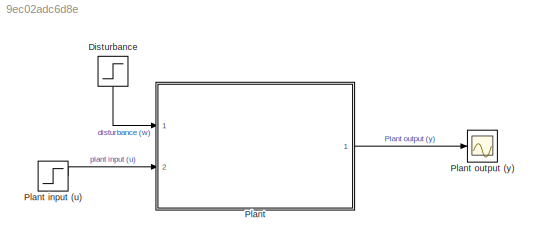
MODEL slx_9ec02adc6d8e
KIND model
CONFIG AbsTol = auto
CONFIG EnableMultiTasking = off
CONFIG FixedStep = auto
CONFIG MaxStep = auto
CONFIG MinStep = auto
CONFIG RelTol = 1e-3
CONFIG SampleTimeConstraint = Unconstrained
CONFIG Solver = VariableStepAuto
CONFIG SolverName = VariableStepAuto
CONFIG StartTime = 0.0
CONFIG StopTime = 10.0
BLOCK [Step] Disturbance
  After = 0
  NameLocation = left
  SampleTime = 0
  Time = 5
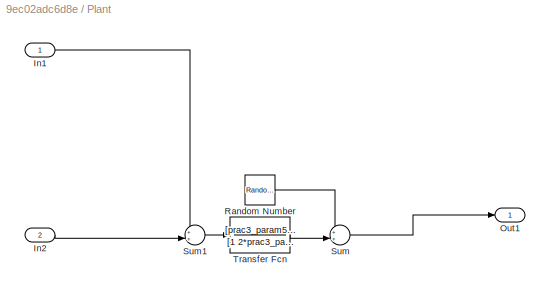
BLOCK [SubSystem] Plant
  Ports = [2, 1]
  RequestExecContextInheritance = off
  ShowPortLabels = SignalName
BLOCK [Step] Plant input (u)
  SampleTime = 0
BLOCK [Scope] Plant output (y)
  Floating = off
  NumInputPorts = 1
  Ports = [1]
  ScopeSpecificationString = Simulink.scopes.TimeScopeBlockCfg('CurrentConfiguration', extmgr.ConfigurationSet(extmgr.Configuration('Core','General UI',true),extmgr.Configuration('Core','Source UI',true),extmgr.Configuration('Sources','WiredSimulink',true),extmgr.Configuration('Visuals','Time Domain',true,'SerializedDisplays',{struct('MinYLimReal','-0.14331','MaxYLimReal','0.996','YLabelReal','Plant output (y)','MinYLimMag','...<+1441ch>
BLOCK [Inport] Plant/In1
BLOCK [Inport] Plant/In2
  Port = 2
BLOCK [Outport] Plant/Out1
BLOCK [RandomNumber] Plant/Random Number
  SampleTime = 0.001
  Variance = prac3_param6^2
BLOCK [Sum] Plant/Sum
  Inputs = ++|
  Ports = [2, 1]
BLOCK [Sum] Plant/Sum1
  Inputs = ++|
  Ports = [2, 1]
BLOCK [TransferFcn] Plant/Transfer Fcn
  Denominator = [1 2*prac3_param4*prac3_param3*prac3_param2*prac3_param1 (prac3_param4*prac3_param3)^2]
  Numerator = [prac3_param5*(prac3_param4*prac3_param3)^2]
LINE Disturbance:1 -> Plant:1
LINE Plant input (u):1 -> Plant:2
LINE Plant/In1:1 -> Plant/Sum1:1
LINE Plant/In2:1 -> Plant/Sum1:2
LINE Plant/Random Number:1 -> Plant/Sum:1
LINE Plant/Sum1:1 -> Plant/Transfer Fcn:1
LINE Plant/Sum:1 -> Plant/Out1:1
LINE Plant/Transfer Fcn:1 -> Plant/Sum:2
LINE Plant:1 -> Plant output (y):1
